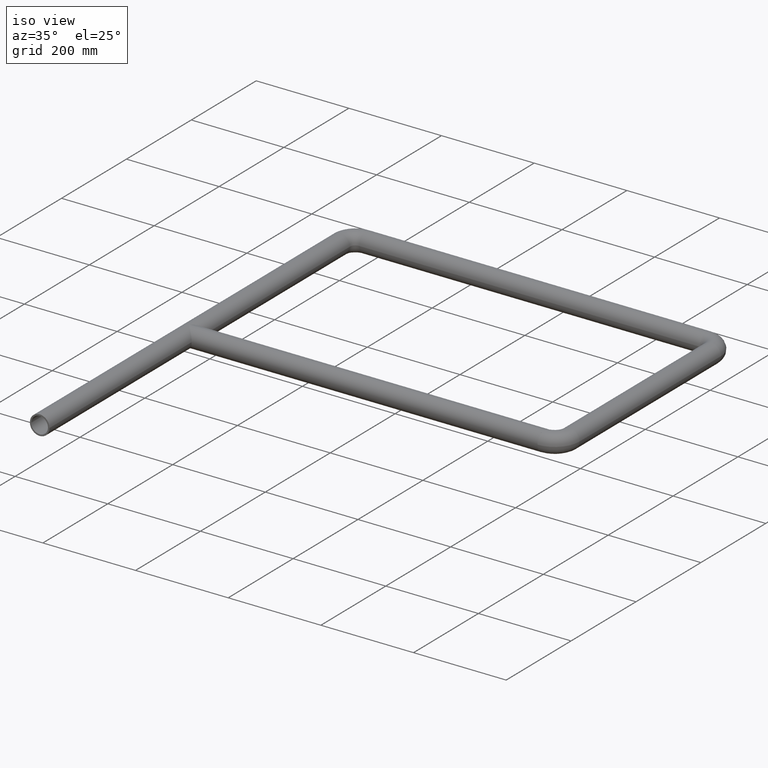
[diagram: clean part render]
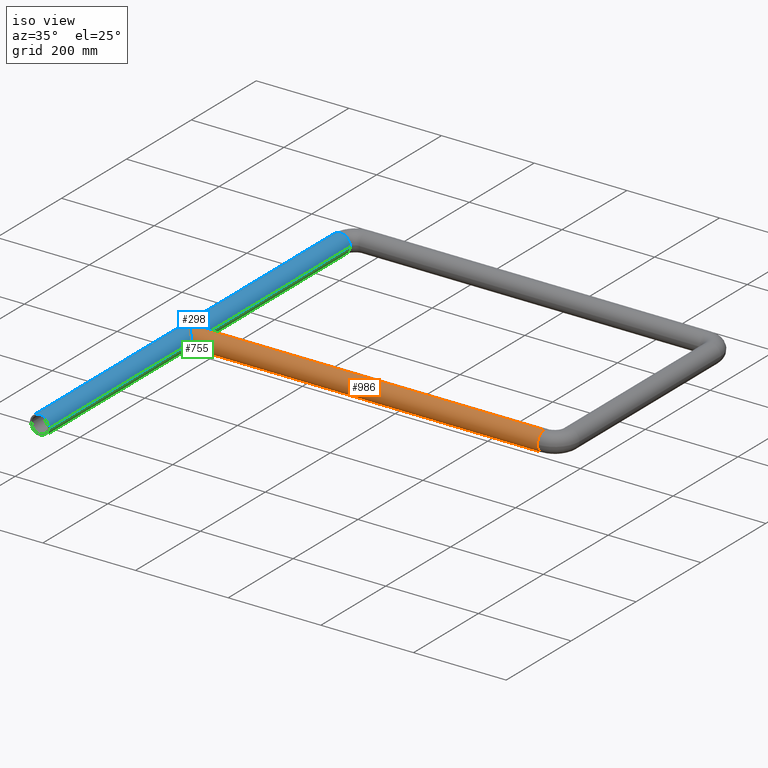
[diagram: same view with three faces highlighted in distinct colors, each labeled with its STEP entity id]
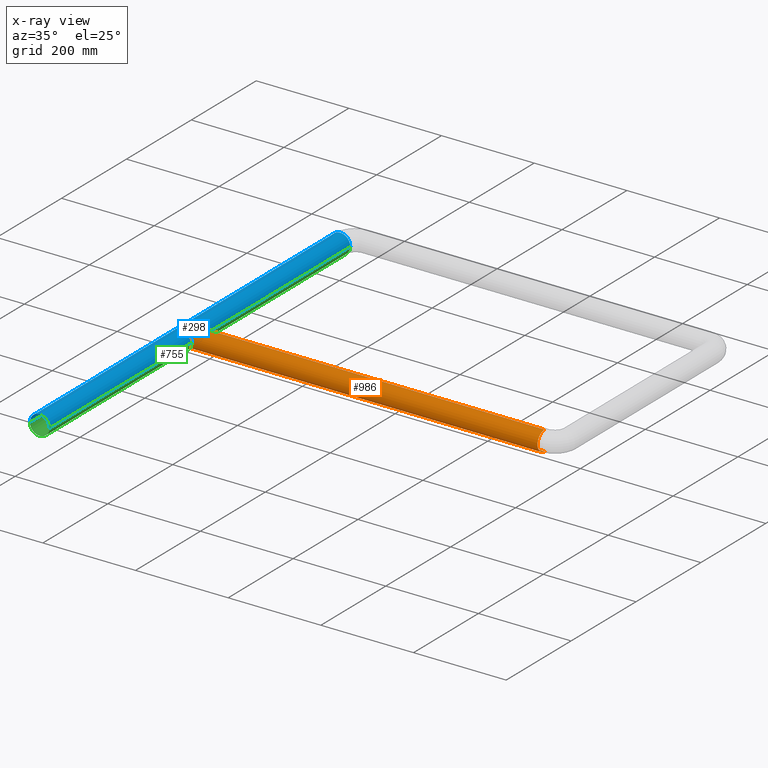
[diagram: x-ray of the same camera — body ghosted, the three highlighted faces saturated]
A machine part, iso view with three faces highlighted in distinct colors.
The next image is the same camera in x-ray (body ghosted, the three faces saturated) — at least one of them is partly hidden behind the body in this view.
Their STEP definitions:

[orange] entity #986 — the highlighted cylindrical surface (edge-blend (fillet) strip) has radius 21.2 mm, axis along (-1, -0, -0).
#112 = CARTESIAN_POINT ( 'NONE',  ( -378.8000000000000114, 437.8000000000000682, 0.000000000000000000 ) ) ;
#154 = CARTESIAN_POINT ( 'NONE',  ( 368.0000000000000568, 459.0000000000000568, 0.000000000000000000 ) ) ;
#164 = CARTESIAN_POINT ( 'NONE',  ( 368.0000000000000568, 459.0000000000000568, -21.19999999999999929 ) ) ;
#236 = AXIS2_PLACEMENT_3D ( 'NONE', #154, #589, #481 ) ;
#244 = EDGE_CURVE ( 'NONE', #894, #624, #1266, .T. ) ;
#246 = VERTEX_POINT ( 'NONE', #335 ) ;
#272 = EDGE_CURVE ( 'NONE', #806, #894, #1302, .T. ) ;
#302 = ORIENTED_EDGE ( 'NONE', *, *, #244, .F. ) ;
#309 = ORIENTED_EDGE ( 'NONE', *, *, #767, .F. ) ;
#335 = CARTESIAN_POINT ( 'NONE',  ( 368.0000000000000568, 459.0000000000000568, -21.19999999999999929 ) ) ;
#336 = EDGE_LOOP ( 'NONE', ( #309, #562, #1175, #302, #410 ) ) ;
#352 = DIRECTION ( 'NONE',  ( 0.000000000000000000, 0.000000000000000000, 1.000000000000000000 ) ) ;
#360 = DIRECTION ( 'NONE',  ( -1.000000000000000000, -0.000000000000000000, -0.000000000000000000 ) ) ;
#410 = ORIENTED_EDGE ( 'NONE', *, *, #272, .F. ) ;
#424 = CARTESIAN_POINT ( 'NONE',  ( -378.8000000000000682, 437.8000000000000682, -12.41867247769038229 ) ) ;
#429 = CARTESIAN_POINT ( 'NONE',  ( 368.0000000000000568, 459.0000000000000568, 0.000000000000000000 ) ) ;
#462 = FACE_OUTER_BOUND ( 'NONE', #336, .T. ) ;
#464 = VERTEX_POINT ( 'NONE', #728 ) ;
#481 = DIRECTION ( 'NONE',  ( 0.000000000000000000, 1.000000000000000000, 0.000000000000000000 ) ) ;
#526 = CARTESIAN_POINT ( 'NONE',  ( -387.5813275223095502, 446.5813275223096639, -21.19999999999999218 ) ) ;
#536 = VECTOR ( 'NONE', #679, 1000.000000000000000 ) ;
#562 = ORIENTED_EDGE ( 'NONE', *, *, #1291, .F. ) ;
#589 = DIRECTION ( 'NONE',  ( 1.000000000000000000, -6.033820786006284731E-16, 0.000000000000000000 ) ) ;
#624 = VERTEX_POINT ( 'NONE', #717 ) ;
#632 = CARTESIAN_POINT ( 'NONE',  ( -400.0000000000000000, 459.0000000000000568, 21.19999999999999929 ) ) ;
#669 = CARTESIAN_POINT ( 'NONE',  ( -378.8000000000000114, 437.8000000000000682, 0.000000000000000000 ) ) ;
#679 = DIRECTION ( 'NONE',  ( -1.000000000000000000, -0.000000000000000000, -0.000000000000000000 ) ) ;
#696 = LINE ( 'NONE', #164, #931 ) ;
#717 = CARTESIAN_POINT ( 'NONE',  ( -400.0000000000000000, 459.0000000000000568, 21.19999999999999929 ) ) ;
#728 = CARTESIAN_POINT ( 'NONE',  ( 368.0000000000000568, 459.0000000000000568, 21.19999999999999929 ) ) ;
#745 = CARTESIAN_POINT ( 'NONE',  ( -400.0000000000000000, 459.0000000000000568, -21.19999999999999929 ) ) ;
#767 = EDGE_CURVE ( 'NONE', #246, #806, #696, .T. ) ;
#783 = LINE ( 'NONE', #1202, #536 ) ;
#806 = VERTEX_POINT ( 'NONE', #1029 ) ;
#839 = DIRECTION ( 'NONE',  ( -1.000000000000000000, -0.000000000000000000, -0.000000000000000000 ) ) ;
#894 = VERTEX_POINT ( 'NONE', #669 ) ;
#931 = VECTOR ( 'NONE', #839, 1000.000000000000000 ) ;
#932 = EDGE_CURVE ( 'NONE', #464, #624, #783, .T. ) ;
#986 = ADVANCED_FACE ( 'NONE', ( #462 ), #1199, .T. ) ;
#1017 = CIRCLE ( 'NONE', #236, 21.19999999999999574 ) ;
#1029 = CARTESIAN_POINT ( 'NONE',  ( -400.0000000000000000, 459.0000000000000568, -21.19999999999999929 ) ) ;
#1066 = CARTESIAN_POINT ( 'NONE',  ( -378.8000000000000682, 437.8000000000000682, 12.41867247769037697 ) ) ;
#1079 = AXIS2_PLACEMENT_3D ( 'NONE', #429, #360, #352 ) ;
#1146 = CARTESIAN_POINT ( 'NONE',  ( -387.5813275223095502, 446.5813275223096639, 21.19999999999999218 ) ) ;
#1175 = ORIENTED_EDGE ( 'NONE', *, *, #932, .T. ) ;
#1199 = CYLINDRICAL_SURFACE ( 'NONE', #1079, 21.19999999999999929 ) ;
#1202 = CARTESIAN_POINT ( 'NONE',  ( 368.0000000000000568, 459.0000000000000568, 21.19999999999999929 ) ) ;
#1263 = CARTESIAN_POINT ( 'NONE',  ( -378.8000000000000114, 437.8000000000000682, 0.000000000000000000 ) ) ;
#1266 =( BOUNDED_CURVE ( )  B_SPLINE_CURVE ( 3, ( #1263, #1066, #1146, #632 ),
 .UNSPECIFIED., .F., .T. ) 
 B_SPLINE_CURVE_WITH_KNOTS ( ( 4, 4 ),
 ( 3.141592653589793116, 4.712388980384689674 ),
 .UNSPECIFIED. ) 
 CURVE ( )  GEOMETRIC_REPRESENTATION_ITEM ( )  RATIONAL_B_SPLINE_CURVE ( ( 1.000000000000000000, 0.8047378541243649375, 0.8047378541243649375, 1.000000000000000000 ) ) 
 REPRESENTATION_ITEM ( '' )  );
#1291 = EDGE_CURVE ( 'NONE', #464, #246, #1017, .T. ) ;
#1302 =( BOUNDED_CURVE ( )  B_SPLINE_CURVE ( 3, ( #745, #526, #424, #112 ),
 .UNSPECIFIED., .F., .T. ) 
 B_SPLINE_CURVE_WITH_KNOTS ( ( 4, 4 ),
 ( 1.570796326794896558, 3.141592653589793116 ),
 .UNSPECIFIED. ) 
 CURVE ( )  GEOMETRIC_REPRESENTATION_ITEM ( )  RATIONAL_B_SPLINE_CURVE ( ( 1.000000000000000000, 0.8047378541243649375, 0.8047378541243649375, 1.000000000000000000 ) ) 
 REPRESENTATION_ITEM ( '' )  );

[blue] entity #298 — the highlighted cylindrical surface (edge-blend (fillet) strip) has radius 21.2 mm, axis along (-0, -1, -0).
#74 = DIRECTION ( 'NONE',  ( -1.000000000000000000, 0.000000000000000000, 0.000000000000000000 ) ) ;
#102 = ORIENTED_EDGE ( 'NONE', *, *, #477, .F. ) ;
#148 = DIRECTION ( 'NONE',  ( -5.988257953749493381E-17, -1.000000000000000000, -0.000000000000000000 ) ) ;
#189 = CARTESIAN_POINT ( 'NONE',  ( -378.7999999999999545, 927.0000000000003411, 0.000000000000000000 ) ) ;
#190 = VECTOR ( 'NONE', #1122, 1000.000000000000000 ) ;
#192 = LINE ( 'NONE', #308, #190 ) ;
#206 = DIRECTION ( 'NONE',  ( 1.000000000000000000, 0.000000000000000000, 0.000000000000000000 ) ) ;
#232 = CARTESIAN_POINT ( 'NONE',  ( -400.0000000000000000, 0.000000000000000000, 0.000000000000000000 ) ) ;
#259 = AXIS2_PLACEMENT_3D ( 'NONE', #1112, #413, #74 ) ;
#298 = ADVANCED_FACE ( 'NONE', ( #967 ), #848, .T. ) ;
#308 = CARTESIAN_POINT ( 'NONE',  ( -378.7999999999999545, 927.0000000000003411, 0.000000000000000000 ) ) ;
#348 = CARTESIAN_POINT ( 'NONE',  ( -378.8000000000000114, -1.269510686194892217E-15, 0.000000000000000000 ) ) ;
#413 = DIRECTION ( 'NONE',  ( 5.988257953749492148E-17, 1.000000000000000000, 0.000000000000000000 ) ) ;
#426 = VECTOR ( 'NONE', #148, 1000.000000000000000 ) ;
#473 = CARTESIAN_POINT ( 'NONE',  ( -421.1999999999999886, 927.0000000000003411, 2.596251214192388770E-15 ) ) ;
#477 = EDGE_CURVE ( 'NONE', #751, #1049, #192, .T. ) ;
#504 = EDGE_LOOP ( 'NONE', ( #1108, #1328, #1218, #102 ) ) ;
#513 = CIRCLE ( 'NONE', #259, 21.19999999999999574 ) ;
#653 = DIRECTION ( 'NONE',  ( 5.988257953749492148E-17, 1.000000000000000000, 0.000000000000000000 ) ) ;
#670 = CARTESIAN_POINT ( 'NONE',  ( -421.2000000000000455, 1.269510686194892414E-15, 2.596251214192389164E-15 ) ) ;
#676 = LINE ( 'NONE', #473, #426 ) ;
#751 = VERTEX_POINT ( 'NONE', #189 ) ;
#848 = CYLINDRICAL_SURFACE ( 'NONE', #952, 21.19999999999999574 ) ;
#858 = EDGE_CURVE ( 'NONE', #979, #751, #513, .T. ) ;
#883 = CARTESIAN_POINT ( 'NONE',  ( -421.1999999999999886, 927.0000000000003411, 2.596251214192389164E-15 ) ) ;
#911 = CIRCLE ( 'NONE', #1271, 21.19999999999999574 ) ;
#952 = AXIS2_PLACEMENT_3D ( 'NONE', #1275, #1162, #206 ) ;
#967 = FACE_OUTER_BOUND ( 'NONE', #504, .T. ) ;
#979 = VERTEX_POINT ( 'NONE', #883 ) ;
#1049 = VERTEX_POINT ( 'NONE', #348 ) ;
#1108 = ORIENTED_EDGE ( 'NONE', *, *, #858, .F. ) ;
#1112 = CARTESIAN_POINT ( 'NONE',  ( -399.9999999999999432, 927.0000000000003411, 0.000000000000000000 ) ) ;
#1122 = DIRECTION ( 'NONE',  ( -5.988257953749493381E-17, -1.000000000000000000, -0.000000000000000000 ) ) ;
#1159 = EDGE_CURVE ( 'NONE', #1361, #1049, #911, .T. ) ;
#1162 = DIRECTION ( 'NONE',  ( -5.988257953749493381E-17, -1.000000000000000000, -0.000000000000000000 ) ) ;
#1218 = ORIENTED_EDGE ( 'NONE', *, *, #1159, .T. ) ;
#1271 = AXIS2_PLACEMENT_3D ( 'NONE', #232, #653, #1303 ) ;
#1275 = CARTESIAN_POINT ( 'NONE',  ( -399.9999999999999432, 927.0000000000003411, 0.000000000000000000 ) ) ;
#1303 = DIRECTION ( 'NONE',  ( -1.000000000000000000, 5.988257953749493381E-17, 0.000000000000000000 ) ) ;
#1305 = EDGE_CURVE ( 'NONE', #979, #1361, #676, .T. ) ;
#1328 = ORIENTED_EDGE ( 'NONE', *, *, #1305, .T. ) ;
#1361 = VERTEX_POINT ( 'NONE', #670 ) ;

[green] entity #755 — the highlighted cylindrical surface (edge-blend (fillet) strip) has radius 21.2 mm, axis along (-0, -1, -0).
#1 = DIRECTION ( 'NONE',  ( 5.988257953749492148E-17, 1.000000000000000000, 0.000000000000000000 ) ) ;
#25 = ORIENTED_EDGE ( 'NONE', *, *, #477, .T. ) ;
#73 = ORIENTED_EDGE ( 'NONE', *, *, #211, .T. ) ;
#82 = EDGE_CURVE ( 'NONE', #751, #979, #310, .T. ) ;
#148 = DIRECTION ( 'NONE',  ( -5.988257953749493381E-17, -1.000000000000000000, -0.000000000000000000 ) ) ;
#189 = CARTESIAN_POINT ( 'NONE',  ( -378.7999999999999545, 927.0000000000003411, 0.000000000000000000 ) ) ;
#190 = VECTOR ( 'NONE', #1122, 1000.000000000000000 ) ;
#192 = LINE ( 'NONE', #308, #190 ) ;
#211 = EDGE_CURVE ( 'NONE', #1049, #1361, #1357, .T. ) ;
#216 = ORIENTED_EDGE ( 'NONE', *, *, #82, .F. ) ;
#295 = DIRECTION ( 'NONE',  ( -1.000000000000000000, 0.000000000000000000, 0.000000000000000000 ) ) ;
#308 = CARTESIAN_POINT ( 'NONE',  ( -378.7999999999999545, 927.0000000000003411, 0.000000000000000000 ) ) ;
#310 = CIRCLE ( 'NONE', #879, 21.19999999999999574 ) ;
#321 = CARTESIAN_POINT ( 'NONE',  ( -400.0000000000000000, 0.000000000000000000, 0.000000000000000000 ) ) ;
#348 = CARTESIAN_POINT ( 'NONE',  ( -378.8000000000000114, -1.269510686194892217E-15, 0.000000000000000000 ) ) ;
#395 = FACE_OUTER_BOUND ( 'NONE', #644, .T. ) ;
#426 = VECTOR ( 'NONE', #148, 1000.000000000000000 ) ;
#473 = CARTESIAN_POINT ( 'NONE',  ( -421.1999999999999886, 927.0000000000003411, 2.596251214192388770E-15 ) ) ;
#477 = EDGE_CURVE ( 'NONE', #751, #1049, #192, .T. ) ;
#510 = CARTESIAN_POINT ( 'NONE',  ( -399.9999999999999432, 927.0000000000003411, 0.000000000000000000 ) ) ;
#540 = ORIENTED_EDGE ( 'NONE', *, *, #1305, .F. ) ;
#644 = EDGE_LOOP ( 'NONE', ( #540, #216, #25, #73 ) ) ;
#670 = CARTESIAN_POINT ( 'NONE',  ( -421.2000000000000455, 1.269510686194892414E-15, 2.596251214192389164E-15 ) ) ;
#676 = LINE ( 'NONE', #473, #426 ) ;
#751 = VERTEX_POINT ( 'NONE', #189 ) ;
#755 = ADVANCED_FACE ( 'NONE', ( #395 ), #824, .T. ) ;
#823 = CARTESIAN_POINT ( 'NONE',  ( -399.9999999999999432, 927.0000000000003411, 0.000000000000000000 ) ) ;
#824 = CYLINDRICAL_SURFACE ( 'NONE', #974, 21.19999999999999574 ) ;
#879 = AXIS2_PLACEMENT_3D ( 'NONE', #823, #1248, #295 ) ;
#883 = CARTESIAN_POINT ( 'NONE',  ( -421.1999999999999886, 927.0000000000003411, 2.596251214192389164E-15 ) ) ;
#930 = AXIS2_PLACEMENT_3D ( 'NONE', #321, #1, #1280 ) ;
#974 = AXIS2_PLACEMENT_3D ( 'NONE', #510, #1348, #1230 ) ;
#979 = VERTEX_POINT ( 'NONE', #883 ) ;
#1049 = VERTEX_POINT ( 'NONE', #348 ) ;
#1122 = DIRECTION ( 'NONE',  ( -5.988257953749493381E-17, -1.000000000000000000, -0.000000000000000000 ) ) ;
#1230 = DIRECTION ( 'NONE',  ( 1.000000000000000000, 0.000000000000000000, 0.000000000000000000 ) ) ;
#1248 = DIRECTION ( 'NONE',  ( 5.988257953749492148E-17, 1.000000000000000000, 0.000000000000000000 ) ) ;
#1280 = DIRECTION ( 'NONE',  ( -1.000000000000000000, 5.988257953749493381E-17, 0.000000000000000000 ) ) ;
#1305 = EDGE_CURVE ( 'NONE', #979, #1361, #676, .T. ) ;
#1348 = DIRECTION ( 'NONE',  ( -5.988257953749493381E-17, -1.000000000000000000, -0.000000000000000000 ) ) ;
#1357 = CIRCLE ( 'NONE', #930, 21.19999999999999574 ) ;
#1361 = VERTEX_POINT ( 'NONE', #670 ) ;